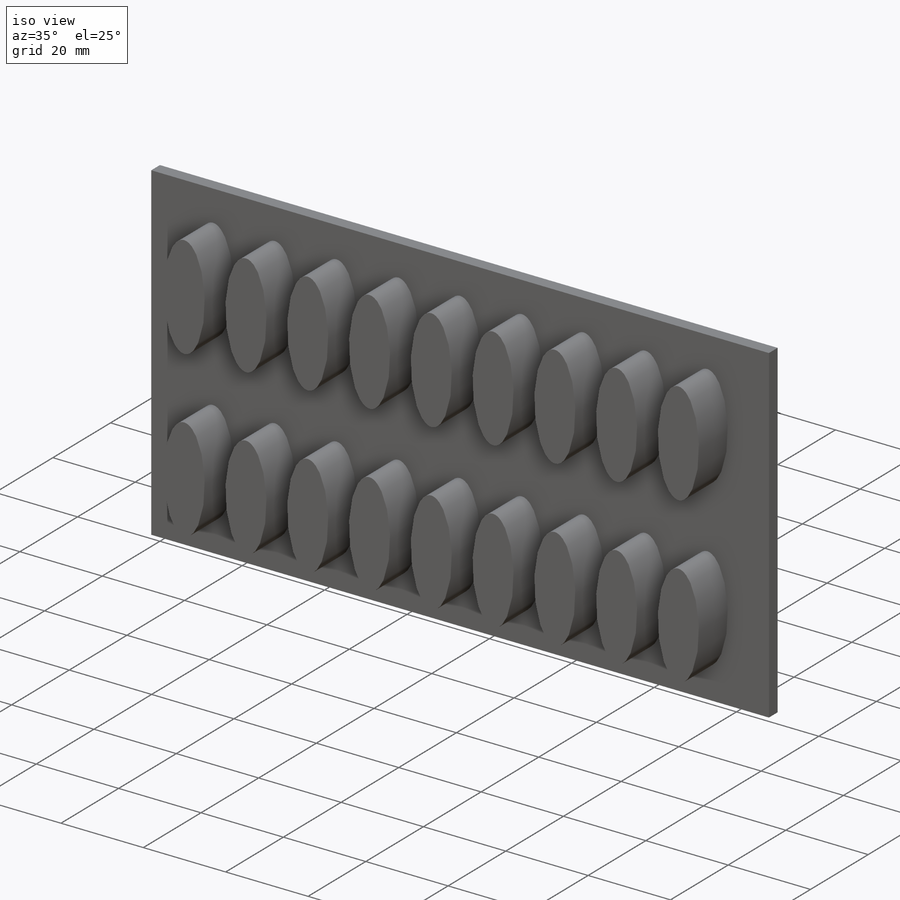
[diagram: iso view]
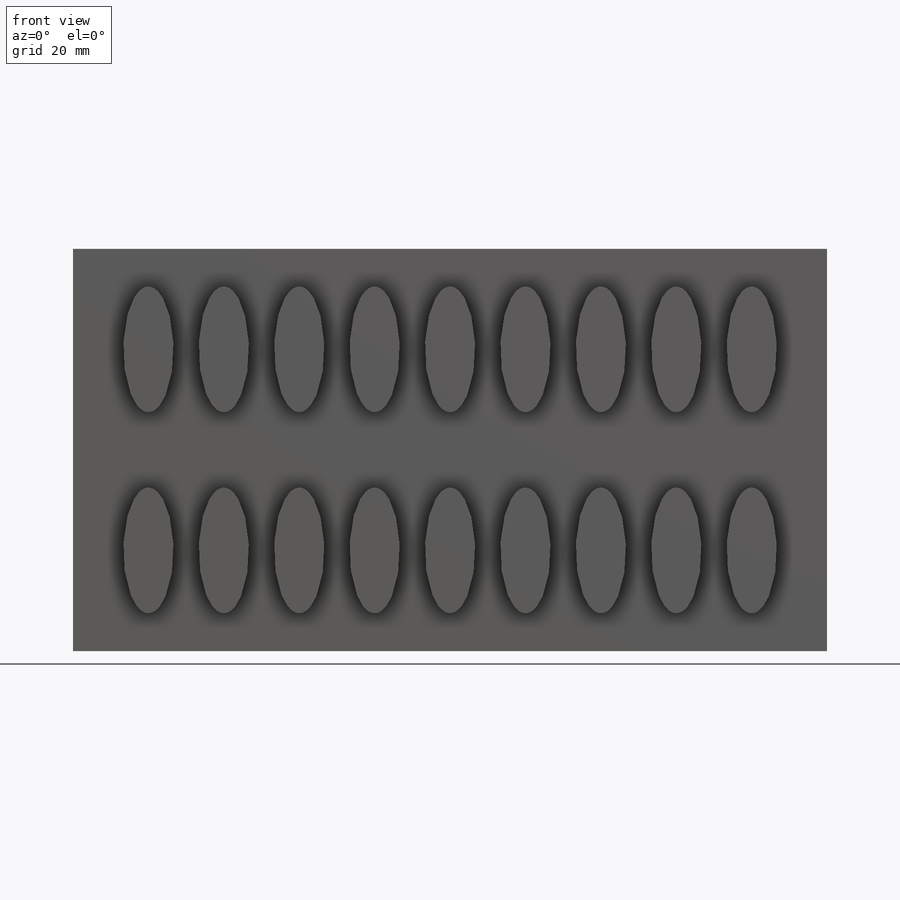
[diagram: front view]
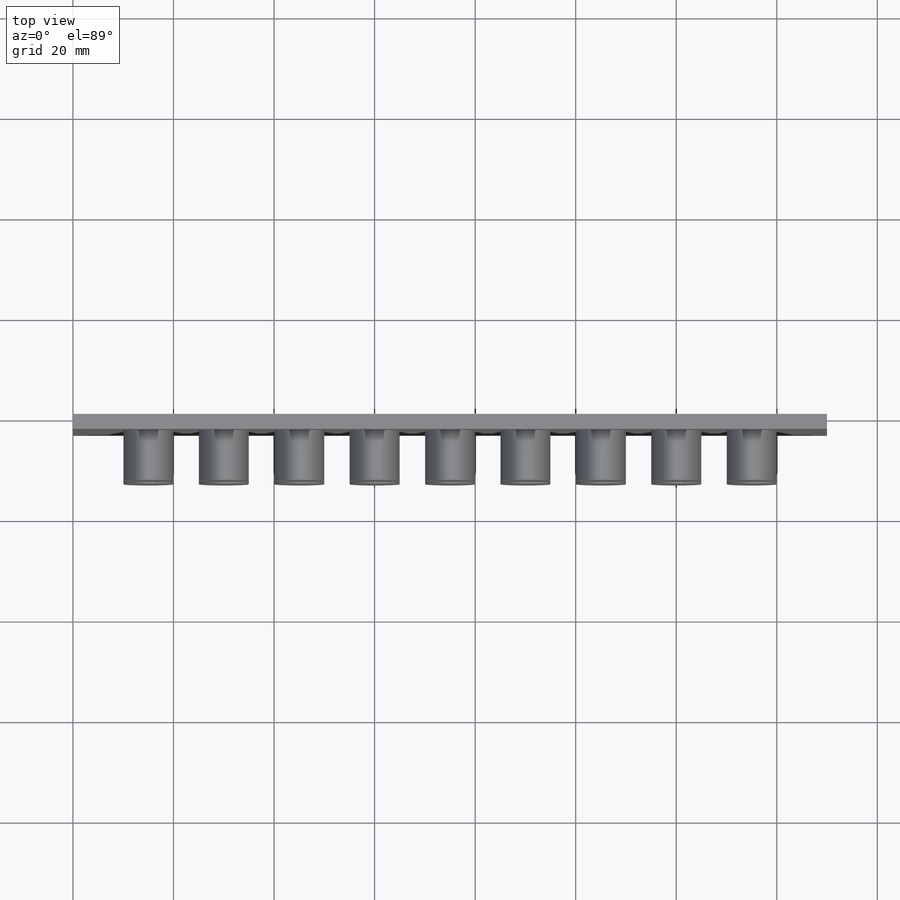
[diagram: top view]
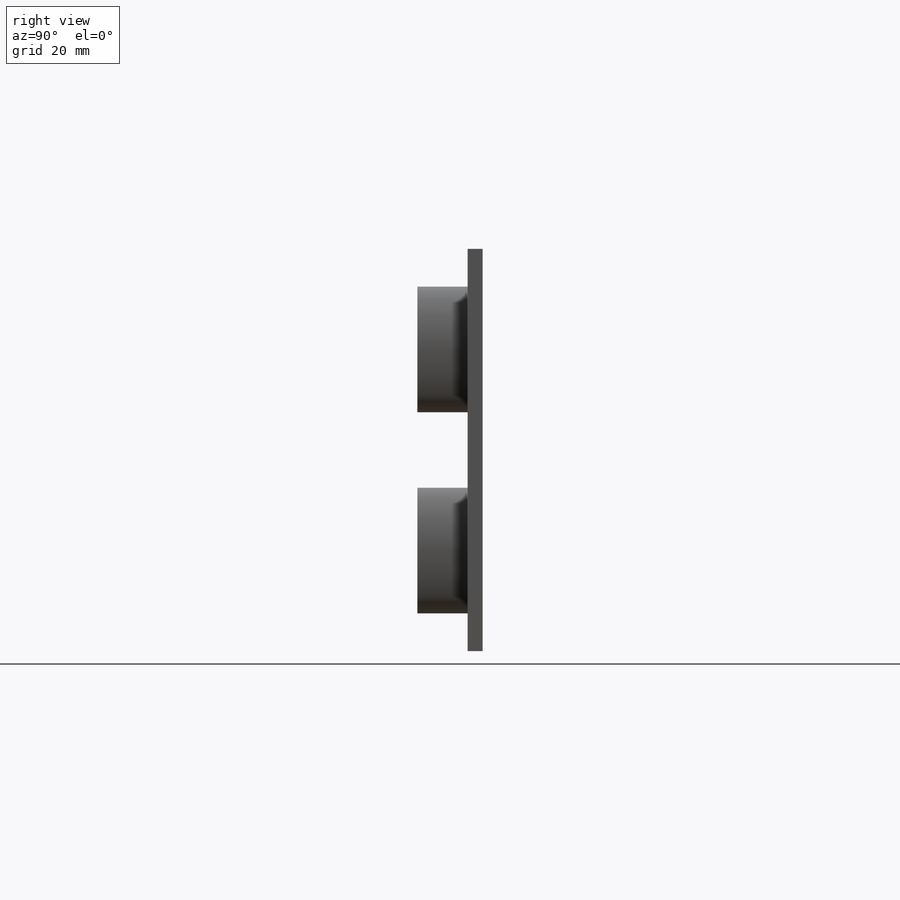
[diagram: right view]
SOLIDWORKS PART (.sldprt)
format: sldprt  version: not decoded by parser v0  size: 112,640 bytes
history: native  units: mm
features: plane x3, sketch x2, extrude x2, material x1, pattern_linear x1 (+10 scaffold rows collapsed)
feature tree (19):
  scaffold x10  (default folders/planes/origin — collapsed)
  material  "Materiál <není určen>"
  plane  "Přední rovina"
  plane  "Horní rovina"
  plane  "Pravá rovina"
  sketch  "Skica1"  dims[D1=150.0mm D2=80.0mm]
  extrude  "Vysunout1"  Depth=3mm
  sketch  "Skica2"  dims[D1=10.0mm D2=25.0mm D3=15.0mm D4=20.0mm]
  extrude  "Vysunout2"  Depth=10mm
  pattern_linear  "LinPole1"  Count1=9 Count2=2 Spacing1=15mm Spacing2=40mm
decode coverage: 5 of 5 modeling features carry decoded parameters
note: suppression state not decoded; provenance and decode notes live in map.json
